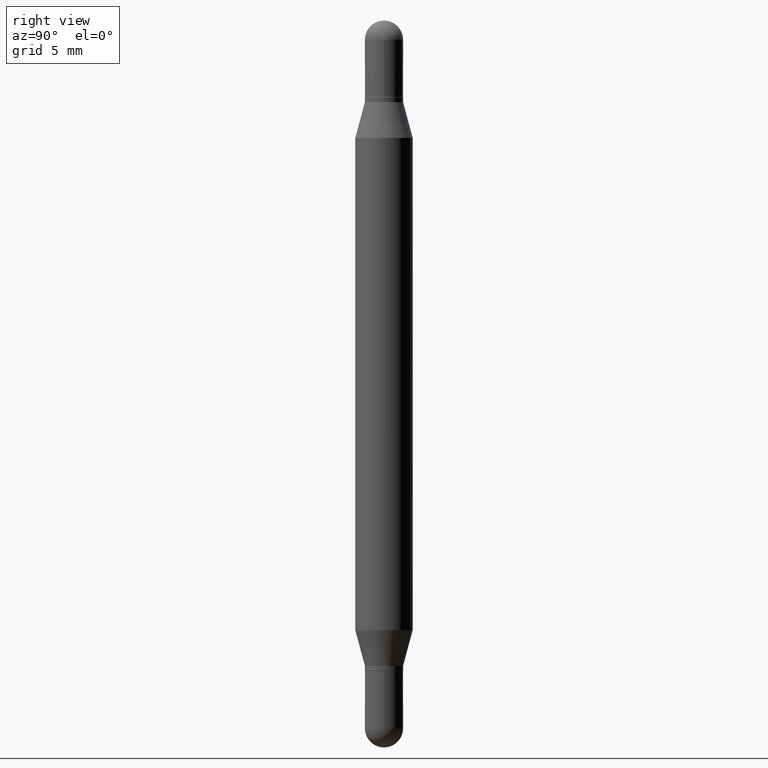
[diagram: clean part render]
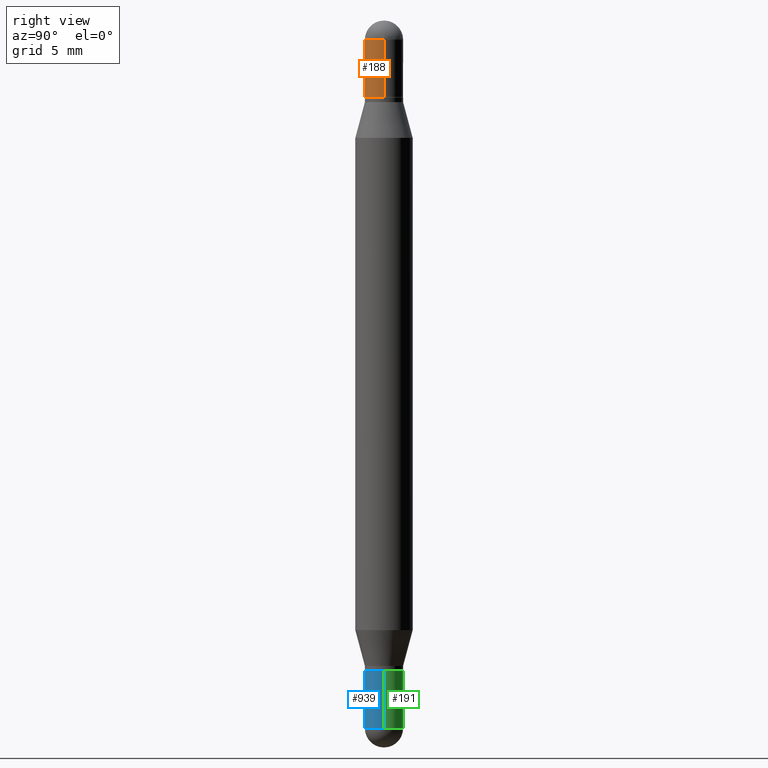
[diagram: same view with three faces highlighted in distinct colors, each labeled with its STEP entity id]
A machine part, right view with three faces highlighted in distinct colors.
Their STEP definitions:

[orange] entity #188 — the highlighted cylindrical surface (edge-blend (fillet) strip) has radius 0.9995 mm, axis along (-0, -0, -1).
#18 = CARTESIAN_POINT ( 'NONE',  ( -0.03935000000000000303, -8.139747119883315106E-17, -0.1574999999999998901 ) ) ;
#24 = EDGE_CURVE ( 'NONE', #200, #966, #718, .T. ) ;
#25 = CIRCLE ( 'NONE', #779, 0.03935000000000000303 ) ;
#45 = EDGE_CURVE ( 'NONE', #966, #350, #25, .T. ) ;
#50 = ORIENTED_EDGE ( 'NONE', *, *, #155, .F. ) ;
#60 = DIRECTION ( 'NONE',  ( 1.000000000000000000, -6.982962677686266711E-15, 0.000000000000000000 ) ) ;
#85 = LINE ( 'NONE', #514, #306 ) ;
#95 = AXIS2_PLACEMENT_3D ( 'NONE', #758, #847, #60 ) ;
#100 = DIRECTION ( 'NONE',  ( 1.000000000000000000, -6.982962677686269077E-15, 0.000000000000000000 ) ) ;
#114 = EDGE_CURVE ( 'NONE', #846, #823, #866, .T. ) ;
#134 = VECTOR ( 'NONE', #1083, 39.37007874015748143 ) ;
#155 = EDGE_CURVE ( 'NONE', #200, #846, #492, .T. ) ;
#157 = CARTESIAN_POINT ( 'NONE',  ( -2.747795813669189251E-16, -0.03935000000000013487, -0.03934999999999981568 ) ) ;
#188 = ADVANCED_FACE ( 'NONE', ( #610 ), #1042, .T. ) ;
#200 = VERTEX_POINT ( 'NONE', #699 ) ;
#203 = CARTESIAN_POINT ( 'NONE',  ( -0.03935000000000000303, -4.944767621332070245E-15, -1.496099999999999985 ) ) ;
#208 = ORIENTED_EDGE ( 'NONE', *, *, #385, .F. ) ;
#209 = CARTESIAN_POINT ( 'NONE',  ( 3.273504543959423913E-29, -5.569162920478571366E-16, -0.1574999999999998901 ) ) ;
#226 = DIRECTION ( 'NONE',  ( -2.445468806185136877E-29, -3.479614466977828648E-15, -1.000000000000000000 ) ) ;
#262 = DIRECTION ( 'NONE',  ( -2.445468806185136597E-29, -3.479614466977828254E-15, -1.000000000000000000 ) ) ;
#306 = VECTOR ( 'NONE', #226, 39.37007874015748143 ) ;
#350 = VERTEX_POINT ( 'NONE', #894 ) ;
#360 = AXIS2_PLACEMENT_3D ( 'NONE', #782, #684, #429 ) ;
#385 = EDGE_CURVE ( 'NONE', #823, #350, #85, .T. ) ;
#429 = DIRECTION ( 'NONE',  ( 1.000000000000000000, -6.982962677686266711E-15, 0.000000000000000000 ) ) ;
#492 = CIRCLE ( 'NONE', #360, 0.03935000000000000303 ) ;
#514 = CARTESIAN_POINT ( 'NONE',  ( 0.03935000000000000303, -5.489507798911334023E-15, -1.496099999999999985 ) ) ;
#520 = EDGE_LOOP ( 'NONE', ( #50, #895, #592, #208, #1114 ) ) ;
#560 = DIRECTION ( 'NONE',  ( 2.445468806185136597E-29, 3.479614466977828254E-15, 1.000000000000000000 ) ) ;
#592 = ORIENTED_EDGE ( 'NONE', *, *, #45, .T. ) ;
#607 = CARTESIAN_POINT ( 'NONE',  ( 0.03935000000000000303, -6.261376487780972369E-16, -0.03934999999999994752 ) ) ;
#610 = FACE_OUTER_BOUND ( 'NONE', #520, .T. ) ;
#684 = DIRECTION ( 'NONE',  ( 2.445468806185136597E-29, 3.479614466977828254E-15, 1.000000000000000000 ) ) ;
#699 = CARTESIAN_POINT ( 'NONE',  ( -0.03935000000000000303, -8.139747119883290454E-17, -0.03934999999999994752 ) ) ;
#718 = LINE ( 'NONE', #203, #134 ) ;
#758 = CARTESIAN_POINT ( 'NONE',  ( 3.562436683410197746E-29, -1.457998427744287112E-16, -0.03934999999999994752 ) ) ;
#779 = AXIS2_PLACEMENT_3D ( 'NONE', #209, #560, #906 ) ;
#782 = CARTESIAN_POINT ( 'NONE',  ( 3.562436683410197746E-29, -1.457998427744287112E-16, -0.03934999999999994752 ) ) ;
#823 = VERTEX_POINT ( 'NONE', #607 ) ;
#846 = VERTEX_POINT ( 'NONE', #157 ) ;
#847 = DIRECTION ( 'NONE',  ( 2.445468806185136597E-29, 3.479614466977828254E-15, 1.000000000000000000 ) ) ;
#866 = CIRCLE ( 'NONE', #95, 0.03935000000000000303 ) ;
#883 = AXIS2_PLACEMENT_3D ( 'NONE', #1049, #262, #100 ) ;
#894 = CARTESIAN_POINT ( 'NONE',  ( 0.03935000000000000303, -8.316958734148117577E-16, -0.1574999999999998901 ) ) ;
#895 = ORIENTED_EDGE ( 'NONE', *, *, #24, .T. ) ;
#906 = DIRECTION ( 'NONE',  ( 1.000000000000000000, -6.982962677686266711E-15, 0.000000000000000000 ) ) ;
#966 = VERTEX_POINT ( 'NONE', #18 ) ;
#1042 = CYLINDRICAL_SURFACE ( 'NONE', #883, 0.03935000000000000303 ) ;
#1049 = CARTESIAN_POINT ( 'NONE',  ( 0.000000000000000000, -5.214728217544379106E-15, -1.496099999999999985 ) ) ;
#1083 = DIRECTION ( 'NONE',  ( -2.445468806185136877E-29, -3.479614466977828648E-15, -1.000000000000000000 ) ) ;
#1114 = ORIENTED_EDGE ( 'NONE', *, *, #114, .F. ) ;

[blue] entity #939 — the highlighted cylindrical surface (edge-blend (fillet) strip) has radius 0.9995 mm, axis along (-0, 0, 1).
#3 = VERTEX_POINT ( 'NONE', #884 ) ;
#17 = CARTESIAN_POINT ( 'NONE',  ( 0.03935000000000000303, -5.154735761634549569E-15, -1.456749999999999989 ) ) ;
#44 = VECTOR ( 'NONE', #393, 39.37007874015748143 ) ;
#67 = CARTESIAN_POINT ( 'NONE',  ( 0.03935000000000000303, -2.747795813669546211E-16, 1.918775561275701074E-30 ) ) ;
#113 = CIRCLE ( 'NONE', #512, 0.03935000000000000303 ) ;
#201 = DIRECTION ( 'NONE',  ( 1.000000000000000000, -6.982962677686269077E-15, 0.000000000000000000 ) ) ;
#211 = LINE ( 'NONE', #1004, #548 ) ;
#248 = EDGE_CURVE ( 'NONE', #352, #305, #547, .T. ) ;
#255 = CIRCLE ( 'NONE', #889, 0.03935000000000000303 ) ;
#266 = ORIENTED_EDGE ( 'NONE', *, *, #575, .T. ) ;
#272 = VERTEX_POINT ( 'NONE', #882 ) ;
#305 = VERTEX_POINT ( 'NONE', #474 ) ;
#352 = VERTEX_POINT ( 'NONE', #709 ) ;
#375 = AXIS2_PLACEMENT_3D ( 'NONE', #533, #822, #649 ) ;
#389 = CYLINDRICAL_SURFACE ( 'NONE', #375, 0.03935000000000000303 ) ;
#393 = DIRECTION ( 'NONE',  ( -2.445468806185136877E-29, 3.491481338843145188E-15, 1.000000000000000000 ) ) ;
#474 = CARTESIAN_POINT ( 'NONE',  ( -2.747795813669189251E-16, -0.03935000000000508230, -1.456749999999999767 ) ) ;
#494 = VERTEX_POINT ( 'NONE', #17 ) ;
#508 = EDGE_CURVE ( 'NONE', #3, #272, #113, .T. ) ;
#512 = AXIS2_PLACEMENT_3D ( 'NONE', #731, #923, #1096 ) ;
#533 = CARTESIAN_POINT ( 'NONE',  ( 0.000000000000000000, 0.000000000000000000, 0.000000000000000000 ) ) ;
#546 = DIRECTION ( 'NONE',  ( -2.445468806185136597E-29, 3.491481338843145583E-15, 1.000000000000000000 ) ) ;
#547 = CIRCLE ( 'NONE', #853, 0.03935000000000000303 ) ;
#548 = VECTOR ( 'NONE', #997, 39.37007874015748143 ) ;
#575 = EDGE_CURVE ( 'NONE', #494, #272, #680, .T. ) ;
#640 = ORIENTED_EDGE ( 'NONE', *, *, #1046, .T. ) ;
#649 = DIRECTION ( 'NONE',  ( 1.000000000000000000, -6.982962677686266711E-15, 4.876176775795936353E-29 ) ) ;
#656 = ORIENTED_EDGE ( 'NONE', *, *, #248, .T. ) ;
#658 = EDGE_LOOP ( 'NONE', ( #862, #656, #640, #266, #991 ) ) ;
#680 = LINE ( 'NONE', #67, #44 ) ;
#709 = CARTESIAN_POINT ( 'NONE',  ( -0.03935000000000000303, -4.600357613745995257E-15, -1.456749999999999989 ) ) ;
#717 = CARTESIAN_POINT ( 'NONE',  ( 3.562436683410197746E-29, -5.086215440359752990E-15, -1.456749999999999989 ) ) ;
#731 = CARTESIAN_POINT ( 'NONE',  ( 3.273504543959423913E-29, -4.673696920175434737E-15, -1.338600000000000012 ) ) ;
#822 = DIRECTION ( 'NONE',  ( -2.445468806185136597E-29, 3.491481338843145583E-15, 1.000000000000000000 ) ) ;
#853 = AXIS2_PLACEMENT_3D ( 'NONE', #717, #1064, #201 ) ;
#862 = ORIENTED_EDGE ( 'NONE', *, *, #921, .F. ) ;
#882 = CARTESIAN_POINT ( 'NONE',  ( 0.03935000000000000303, -4.948476501542388865E-15, -1.338600000000000012 ) ) ;
#884 = CARTESIAN_POINT ( 'NONE',  ( -0.03935000000000000303, -4.600357613745994468E-15, -1.338600000000000012 ) ) ;
#887 = DIRECTION ( 'NONE',  ( 1.000000000000000000, -6.982962677686269077E-15, 0.000000000000000000 ) ) ;
#889 = AXIS2_PLACEMENT_3D ( 'NONE', #973, #546, #887 ) ;
#921 = EDGE_CURVE ( 'NONE', #352, #3, #211, .T. ) ;
#923 = DIRECTION ( 'NONE',  ( -2.445468806185136597E-29, 3.491481338843145583E-15, 1.000000000000000000 ) ) ;
#939 = ADVANCED_FACE ( 'NONE', ( #965 ), #389, .T. ) ;
#965 = FACE_OUTER_BOUND ( 'NONE', #658, .T. ) ;
#973 = CARTESIAN_POINT ( 'NONE',  ( 3.562436683410197746E-29, -5.086215440359752990E-15, -1.456749999999999989 ) ) ;
#991 = ORIENTED_EDGE ( 'NONE', *, *, #508, .F. ) ;
#997 = DIRECTION ( 'NONE',  ( -2.445468806185136877E-29, 3.491481338843145188E-15, 1.000000000000000000 ) ) ;
#1004 = CARTESIAN_POINT ( 'NONE',  ( -0.03935000000000000303, 2.795985665215994447E-16, -1.935600958015305291E-30 ) ) ;
#1046 = EDGE_CURVE ( 'NONE', #305, #494, #255, .T. ) ;
#1064 = DIRECTION ( 'NONE',  ( -2.445468806185136597E-29, 3.491481338843145583E-15, 1.000000000000000000 ) ) ;
#1096 = DIRECTION ( 'NONE',  ( 1.000000000000000000, -6.982962677686269077E-15, 0.000000000000000000 ) ) ;

[green] entity #191 — the highlighted cylindrical surface (edge-blend (fillet) strip) has radius 0.9995 mm, axis along (-0, 0, 1).
#3 = VERTEX_POINT ( 'NONE', #884 ) ;
#14 = DIRECTION ( 'NONE',  ( -2.445468806185136597E-29, 3.491481338843145583E-15, 1.000000000000000000 ) ) ;
#17 = CARTESIAN_POINT ( 'NONE',  ( 0.03935000000000000303, -5.154735761634549569E-15, -1.456749999999999989 ) ) ;
#44 = VECTOR ( 'NONE', #393, 39.37007874015748143 ) ;
#67 = CARTESIAN_POINT ( 'NONE',  ( 0.03935000000000000303, -2.747795813669546211E-16, 1.918775561275701074E-30 ) ) ;
#90 = DIRECTION ( 'NONE',  ( 1.000000000000000000, -6.982962677686269077E-15, 0.000000000000000000 ) ) ;
#91 = EDGE_CURVE ( 'NONE', #494, #1071, #797, .T. ) ;
#111 = ORIENTED_EDGE ( 'NONE', *, *, #575, .F. ) ;
#156 = CARTESIAN_POINT ( 'NONE',  ( 2.795985665216349434E-16, 0.03934999999999490294, -1.456750000000000211 ) ) ;
#180 = CYLINDRICAL_SURFACE ( 'NONE', #654, 0.03935000000000000303 ) ;
#191 = ADVANCED_FACE ( 'NONE', ( #774 ), #180, .T. ) ;
#211 = LINE ( 'NONE', #1004, #548 ) ;
#216 = AXIS2_PLACEMENT_3D ( 'NONE', #841, #831, #579 ) ;
#236 = CIRCLE ( 'NONE', #308, 0.03935000000000000303 ) ;
#272 = VERTEX_POINT ( 'NONE', #882 ) ;
#308 = AXIS2_PLACEMENT_3D ( 'NONE', #861, #14, #90 ) ;
#335 = DIRECTION ( 'NONE',  ( -2.445468806185136597E-29, 3.491481338843145583E-15, 1.000000000000000000 ) ) ;
#352 = VERTEX_POINT ( 'NONE', #709 ) ;
#359 = ORIENTED_EDGE ( 'NONE', *, *, #91, .T. ) ;
#393 = DIRECTION ( 'NONE',  ( -2.445468806185136877E-29, 3.491481338843145188E-15, 1.000000000000000000 ) ) ;
#431 = CARTESIAN_POINT ( 'NONE',  ( 3.273504543959423913E-29, -4.673696920175434737E-15, -1.338600000000000012 ) ) ;
#441 = DIRECTION ( 'NONE',  ( -2.445468806185136597E-29, 3.491481338843145583E-15, 1.000000000000000000 ) ) ;
#494 = VERTEX_POINT ( 'NONE', #17 ) ;
#527 = DIRECTION ( 'NONE',  ( 1.000000000000000000, -6.982962677686266711E-15, 4.876176775795936353E-29 ) ) ;
#534 = ORIENTED_EDGE ( 'NONE', *, *, #921, .T. ) ;
#548 = VECTOR ( 'NONE', #997, 39.37007874015748143 ) ;
#574 = ORIENTED_EDGE ( 'NONE', *, *, #677, .F. ) ;
#575 = EDGE_CURVE ( 'NONE', #494, #272, #680, .T. ) ;
#579 = DIRECTION ( 'NONE',  ( 1.000000000000000000, -6.982962677686269077E-15, 0.000000000000000000 ) ) ;
#590 = DIRECTION ( 'NONE',  ( 1.000000000000000000, -6.982962677686269077E-15, 0.000000000000000000 ) ) ;
#654 = AXIS2_PLACEMENT_3D ( 'NONE', #855, #441, #527 ) ;
#671 = EDGE_CURVE ( 'NONE', #1071, #352, #236, .T. ) ;
#677 = EDGE_CURVE ( 'NONE', #272, #3, #983, .T. ) ;
#680 = LINE ( 'NONE', #67, #44 ) ;
#709 = CARTESIAN_POINT ( 'NONE',  ( -0.03935000000000000303, -4.600357613745995257E-15, -1.456749999999999989 ) ) ;
#774 = FACE_OUTER_BOUND ( 'NONE', #1069, .T. ) ;
#797 = CIRCLE ( 'NONE', #216, 0.03935000000000000303 ) ;
#831 = DIRECTION ( 'NONE',  ( -2.445468806185136597E-29, 3.491481338843145583E-15, 1.000000000000000000 ) ) ;
#841 = CARTESIAN_POINT ( 'NONE',  ( 3.562436683410197746E-29, -5.086215440359752990E-15, -1.456749999999999989 ) ) ;
#855 = CARTESIAN_POINT ( 'NONE',  ( 0.000000000000000000, 0.000000000000000000, 0.000000000000000000 ) ) ;
#861 = CARTESIAN_POINT ( 'NONE',  ( 3.562436683410197746E-29, -5.086215440359752990E-15, -1.456749999999999989 ) ) ;
#882 = CARTESIAN_POINT ( 'NONE',  ( 0.03935000000000000303, -4.948476501542388865E-15, -1.338600000000000012 ) ) ;
#884 = CARTESIAN_POINT ( 'NONE',  ( -0.03935000000000000303, -4.600357613745994468E-15, -1.338600000000000012 ) ) ;
#921 = EDGE_CURVE ( 'NONE', #352, #3, #211, .T. ) ;
#983 = CIRCLE ( 'NONE', #1094, 0.03935000000000000303 ) ;
#997 = DIRECTION ( 'NONE',  ( -2.445468806185136877E-29, 3.491481338843145188E-15, 1.000000000000000000 ) ) ;
#1004 = CARTESIAN_POINT ( 'NONE',  ( -0.03935000000000000303, 2.795985665215994447E-16, -1.935600958015305291E-30 ) ) ;
#1007 = ORIENTED_EDGE ( 'NONE', *, *, #671, .T. ) ;
#1069 = EDGE_LOOP ( 'NONE', ( #1007, #534, #574, #111, #359 ) ) ;
#1071 = VERTEX_POINT ( 'NONE', #156 ) ;
#1094 = AXIS2_PLACEMENT_3D ( 'NONE', #431, #335, #590 ) ;